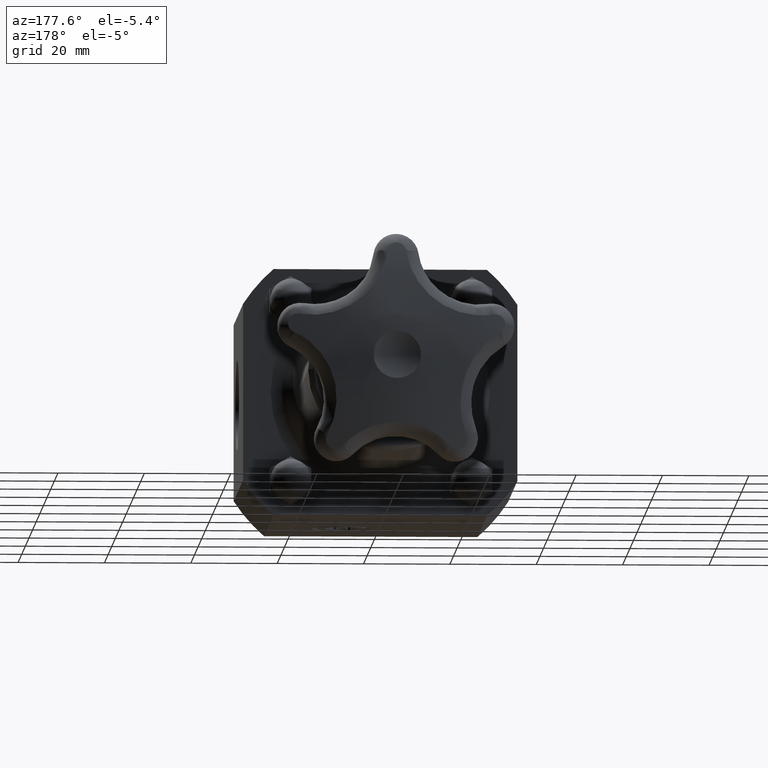
[diagram: clean part render]
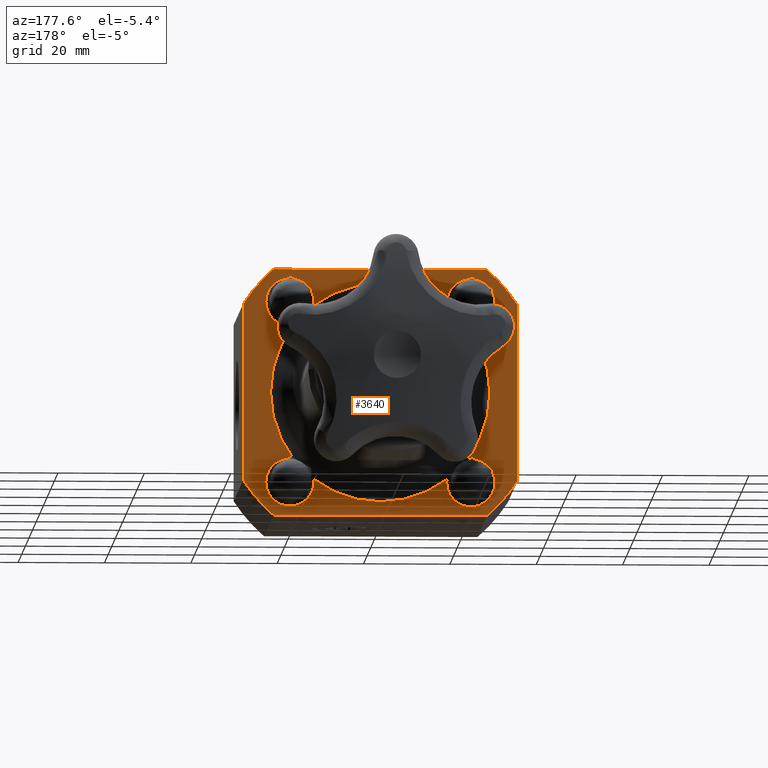
[diagram: same view with one face highlighted and labeled with its STEP entity id]
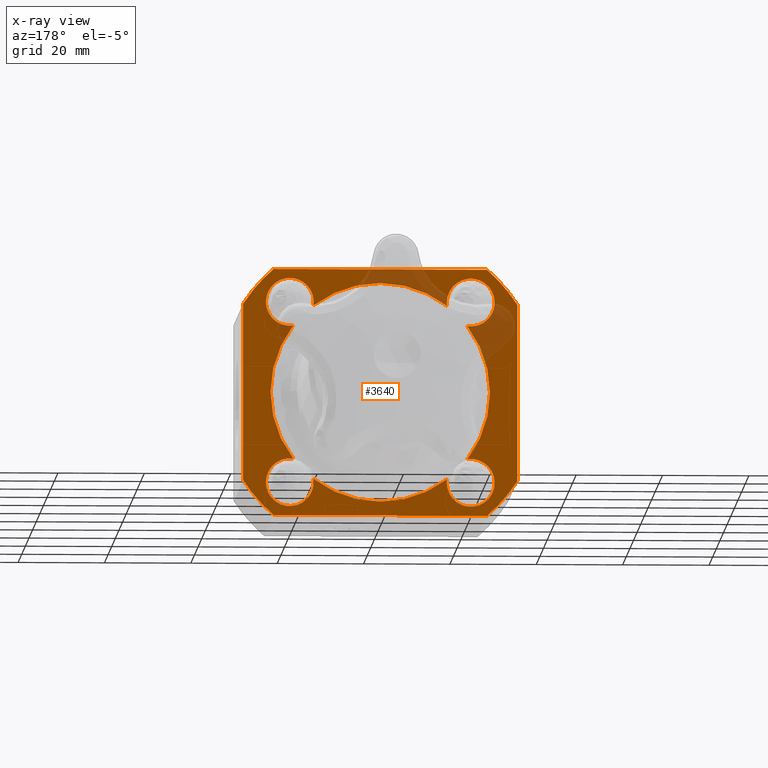
[diagram: x-ray of the same camera — body ghosted, the highlighted face saturated]
A machine part, auxiliary view. The second image highlights one B-rep face of the part: STEP entity #3640.
The next image is the same camera in x-ray: the body ghosted, the highlighted face saturated — about 13% of this face is hidden behind the body in this view.
In plain terms, the highlighted planar face has unit normal (0, 1, 0).
Its self-contained STEP definition (entity closure, byte-faithful):
#1978=CARTESIAN_POINT('',(-0.793316592760964,2.060000000000001,0.608809316329947));
#1979=VERTEX_POINT('',#1978);
#1980=CARTESIAN_POINT('',(-0.608809316329946,2.060000000000001,0.793316592760964));
#1981=VERTEX_POINT('',#1980);
#1999=CARTESIAN_POINT('',(-0.825000000000000,2.060000000000001,0.825000000000001));
#2000=DIRECTION('',(0.0,-1.0,0.0));
#2001=DIRECTION('',(1.0,0.0,0.0));
#2002=AXIS2_PLACEMENT_3D('',#1999,#2000,#2001);
#2003=CIRCLE('',#2002,0.218500000000000);
#2004=EDGE_CURVE('',#1981,#1979,#2003,.T.);
#3125=CARTESIAN_POINT('',(0.608809316329946,2.060000000000000,0.793316592760965));
#3126=VERTEX_POINT('',#3125);
#3127=CARTESIAN_POINT('',(0.793316592760964,2.060000000000000,0.608809316329946));
#3128=VERTEX_POINT('',#3127);
#3146=CARTESIAN_POINT('',(0.825000000000000,2.060000000000000,0.825000000000001));
#3147=DIRECTION('',(0.0,-1.0,0.0));
#3148=DIRECTION('',(1.0,0.0,0.0));
#3149=AXIS2_PLACEMENT_3D('',#3146,#3147,#3148);
#3150=CIRCLE('',#3149,0.218500000000000);
#3151=EDGE_CURVE('',#3128,#3126,#3150,.T.);
#3511=CARTESIAN_POINT('',(1.243750000000000,2.060000000000000,6.984789E-016));
#3512=DIRECTION('',(0.0,1.0,0.0));
#3513=DIRECTION('',(0.0,0.0,1.0));
#3514=AXIS2_PLACEMENT_3D('',#3511,#3512,#3513);
#3515=PLANE('',#3514);
#3516=CARTESIAN_POINT('',(-1.250000000000000,2.060000000000000,0.806322671143508));
#3517=VERTEX_POINT('',#3516);
#3518=CARTESIAN_POINT('',(-1.250000000000000,2.060000000000000,-0.806322671143507));
#3519=VERTEX_POINT('',#3518);
#3520=CARTESIAN_POINT('',(-1.250000000000000,2.060000000000000,0.806322671143508));
#3521=DIRECTION('',(0.0,0.0,-1.0));
#3522=VECTOR('',#3521,1.612645342287014);
#3523=LINE('',#3520,#3522);
#3524=EDGE_CURVE('',#3517,#3519,#3523,.T.);
#3525=ORIENTED_EDGE('',*,*,#3524,.F.);
#3526=CARTESIAN_POINT('',(-0.973155306207597,2.060000000000000,1.125000000000000));
#3527=VERTEX_POINT('',#3526);
#3528=CARTESIAN_POINT('',(1.748383E-016,2.060000000000000,5.245148E-016));
#3529=DIRECTION('',(0.0,-1.0,0.0));
#3530=DIRECTION('',(1.0,0.0,0.0));
#3531=AXIS2_PLACEMENT_3D('',#3528,#3529,#3530);
#3532=CIRCLE('',#3531,1.487500000000000);
#3533=EDGE_CURVE('',#3527,#3517,#3532,.T.);
#3534=ORIENTED_EDGE('',*,*,#3533,.F.);
#3535=CARTESIAN_POINT('',(0.973155306207597,2.060000000000000,1.125000000000000));
#3536=VERTEX_POINT('',#3535);
#3537=CARTESIAN_POINT('',(0.973155306207597,2.060000000000000,1.125000000000000));
#3538=DIRECTION('',(-1.0,0.0,0.0));
#3539=VECTOR('',#3538,1.946310612415194);
#3540=LINE('',#3537,#3539);
#3541=EDGE_CURVE('',#3536,#3527,#3540,.T.);
#3542=ORIENTED_EDGE('',*,*,#3541,.F.);
#3543=CARTESIAN_POINT('',(1.250000000000000,2.060000000000000,0.806322671143508));
#3544=VERTEX_POINT('',#3543);
#3545=CARTESIAN_POINT('',(1.748383E-016,2.060000000000000,5.245148E-016));
#3546=DIRECTION('',(0.0,-1.0,0.0));
#3547=DIRECTION('',(1.0,0.0,0.0));
#3548=AXIS2_PLACEMENT_3D('',#3545,#3546,#3547);
#3549=CIRCLE('',#3548,1.487500000000000);
#3550=EDGE_CURVE('',#3544,#3536,#3549,.T.);
#3551=ORIENTED_EDGE('',*,*,#3550,.F.);
#3552=CARTESIAN_POINT('',(1.250000000000000,2.060000000000000,-0.806322671143507));
#3553=VERTEX_POINT('',#3552);
#3554=CARTESIAN_POINT('',(1.250000000000000,2.060000000000000,-0.806322671143507));
#3555=DIRECTION('',(0.0,0.0,1.0));
#3556=VECTOR('',#3555,1.612645342287014);
#3557=LINE('',#3554,#3556);
#3558=EDGE_CURVE('',#3553,#3544,#3557,.T.);
#3559=ORIENTED_EDGE('',*,*,#3558,.F.);
#3560=CARTESIAN_POINT('',(0.973155306207597,2.060000000000000,-1.124999999999999));
#3561=VERTEX_POINT('',#3560);
#3562=CARTESIAN_POINT('',(1.748383E-016,2.060000000000000,5.245148E-016));
#3563=DIRECTION('',(0.0,-1.0,0.0));
#3564=DIRECTION('',(1.0,0.0,0.0));
#3565=AXIS2_PLACEMENT_3D('',#3562,#3563,#3564);
#3566=CIRCLE('',#3565,1.487500000000000);
#3567=EDGE_CURVE('',#3561,#3553,#3566,.T.);
#3568=ORIENTED_EDGE('',*,*,#3567,.F.);
#3569=CARTESIAN_POINT('',(-0.973155306207596,2.060000000000000,-1.125000000000000));
#3570=VERTEX_POINT('',#3569);
#3571=CARTESIAN_POINT('',(-0.973155306207596,2.060000000000000,-1.125000000000000));
#3572=DIRECTION('',(1.0,0.0,0.0));
#3573=VECTOR('',#3572,1.946310612415192);
#3574=LINE('',#3571,#3573);
#3575=EDGE_CURVE('',#3570,#3561,#3574,.T.);
#3576=ORIENTED_EDGE('',*,*,#3575,.F.);
#3577=CARTESIAN_POINT('',(1.748383E-016,2.060000000000000,5.245148E-016));
#3578=DIRECTION('',(0.0,-1.0,0.0));
#3579=DIRECTION('',(1.0,0.0,0.0));
#3580=AXIS2_PLACEMENT_3D('',#3577,#3578,#3579);
#3581=CIRCLE('',#3580,1.487500000000000);
#3582=EDGE_CURVE('',#3519,#3570,#3581,.T.);
#3583=ORIENTED_EDGE('',*,*,#3582,.F.);
#3584=EDGE_LOOP('',(#3525,#3534,#3542,#3551,#3559,#3568,#3576,#3583));
#3585=FACE_OUTER_BOUND('',#3584,.T.);
#3586=CARTESIAN_POINT('',(-0.793316592760964,2.060000000000001,-0.608809316329946));
#3587=VERTEX_POINT('',#3586);
#3588=CARTESIAN_POINT('',(-0.608809316329946,2.060000000000001,-0.793316592760963));
#3589=VERTEX_POINT('',#3588);
#3590=CARTESIAN_POINT('',(-0.825000000000000,2.060000000000001,-0.825000000000000));
#3591=DIRECTION('',(0.0,-1.0,0.0));
#3592=DIRECTION('',(1.0,0.0,0.0));
#3593=AXIS2_PLACEMENT_3D('',#3590,#3591,#3592);
#3594=CIRCLE('',#3593,0.218500000000000);
#3595=EDGE_CURVE('',#3587,#3589,#3594,.T.);
#3596=ORIENTED_EDGE('',*,*,#3595,.T.);
#3597=CARTESIAN_POINT('',(0.608809316329946,2.060000000000000,-0.793316592760964));
#3598=VERTEX_POINT('',#3597);
#3599=CARTESIAN_POINT('',(1.748383E-016,2.060000000000000,5.245148E-016));
#3600=DIRECTION('',(0.0,-1.0,0.0));
#3601=DIRECTION('',(1.0,0.0,0.0));
#3602=AXIS2_PLACEMENT_3D('',#3599,#3600,#3601);
#3603=CIRCLE('',#3602,1.000000000000000);
#3604=EDGE_CURVE('',#3589,#3598,#3603,.T.);
#3605=ORIENTED_EDGE('',*,*,#3604,.T.);
#3606=CARTESIAN_POINT('',(0.793316592760964,2.060000000000000,-0.608809316329945));
#3607=VERTEX_POINT('',#3606);
#3608=CARTESIAN_POINT('',(0.825000000000000,2.060000000000000,-0.825000000000000));
#3609=DIRECTION('',(0.0,-1.0,0.0));
#3610=DIRECTION('',(1.0,0.0,0.0));
#3611=AXIS2_PLACEMENT_3D('',#3608,#3609,#3610);
#3612=CIRCLE('',#3611,0.218500000000000);
#3613=EDGE_CURVE('',#3598,#3607,#3612,.T.);
#3614=ORIENTED_EDGE('',*,*,#3613,.T.);
#3615=CARTESIAN_POINT('',(1.748383E-016,2.060000000000000,5.245148E-016));
#3616=DIRECTION('',(0.0,-1.0,0.0));
#3617=DIRECTION('',(1.0,0.0,0.0));
#3618=AXIS2_PLACEMENT_3D('',#3615,#3616,#3617);
#3619=CIRCLE('',#3618,1.000000000000000);
#3620=EDGE_CURVE('',#3607,#3128,#3619,.T.);
#3621=ORIENTED_EDGE('',*,*,#3620,.T.);
#3622=ORIENTED_EDGE('',*,*,#3151,.T.);
#3623=CARTESIAN_POINT('',(1.748383E-016,2.060000000000000,5.245148E-016));
#3624=DIRECTION('',(0.0,-1.0,0.0));
#3625=DIRECTION('',(1.0,0.0,0.0));
#3626=AXIS2_PLACEMENT_3D('',#3623,#3624,#3625);
#3627=CIRCLE('',#3626,1.000000000000000);
#3628=EDGE_CURVE('',#3126,#1981,#3627,.T.);
#3629=ORIENTED_EDGE('',*,*,#3628,.T.);
#3630=ORIENTED_EDGE('',*,*,#2004,.T.);
#3631=CARTESIAN_POINT('',(1.748383E-016,2.060000000000000,5.245148E-016));
#3632=DIRECTION('',(0.0,-1.0,0.0));
#3633=DIRECTION('',(1.0,0.0,0.0));
#3634=AXIS2_PLACEMENT_3D('',#3631,#3632,#3633);
#3635=CIRCLE('',#3634,1.000000000000000);
#3636=EDGE_CURVE('',#1979,#3587,#3635,.T.);
#3637=ORIENTED_EDGE('',*,*,#3636,.T.);
#3638=EDGE_LOOP('',(#3596,#3605,#3614,#3621,#3622,#3629,#3630,#3637));
#3639=FACE_BOUND('',#3638,.T.);
#3640=ADVANCED_FACE('',(#3585,#3639),#3515,.T.);